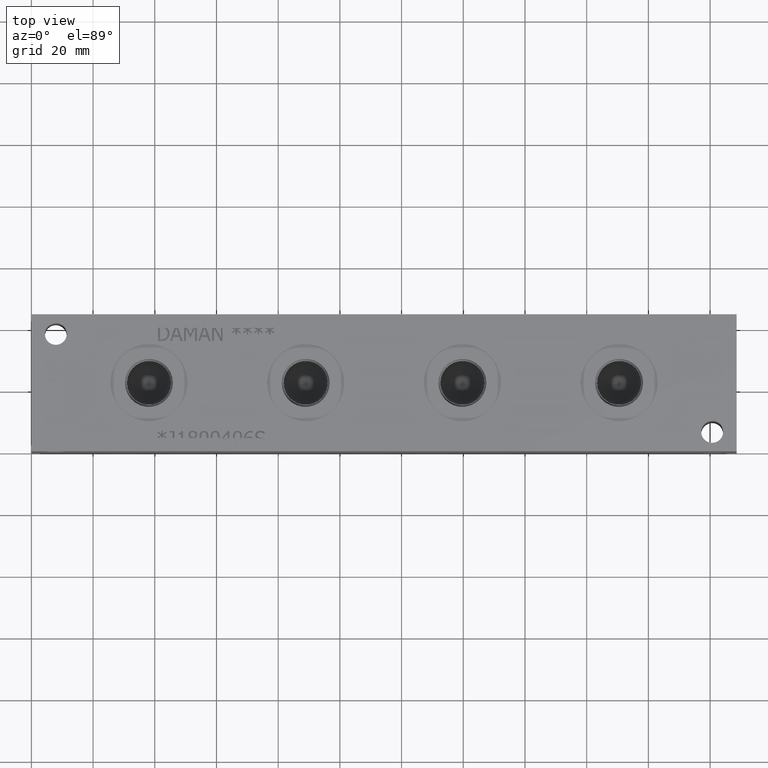
[diagram: clean part render]
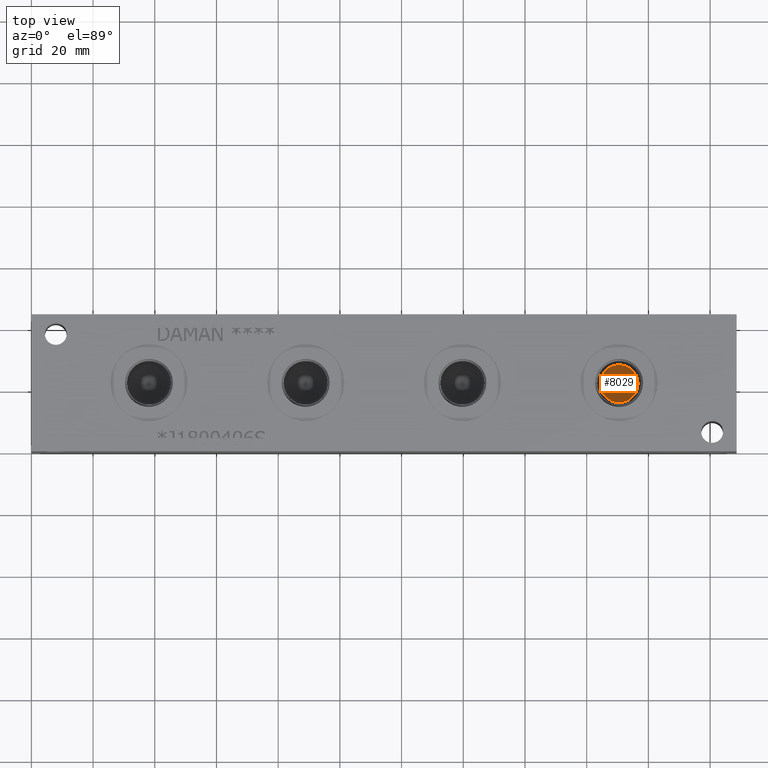
[diagram: same view with one face highlighted and labeled with its STEP entity id]
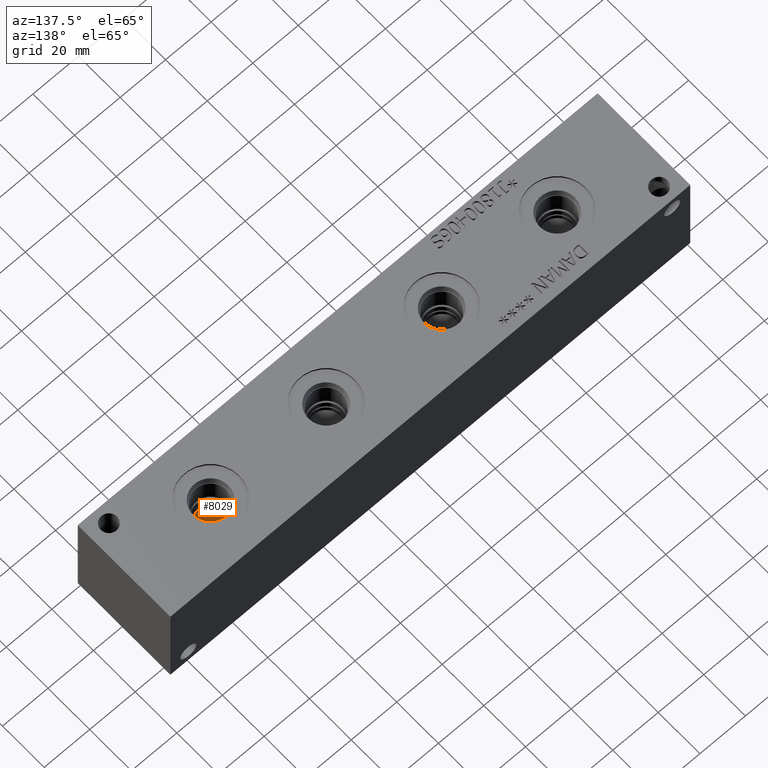
[diagram: same view with one face highlighted and labeled with its STEP entity id]
A machine part, top view. The second image highlights one B-rep face of the part: STEP entity #8029.
A second angle (auxiliary view) of the same face is appended — the face is thin or edge-on in the first view.
In plain terms, the highlighted conical surface has half-angle 60 deg.
Its self-contained STEP definition (entity closure, byte-faithful):
#47=CONICAL_SURFACE('',#8503,3.0734,1.0471975511966);
#243=CIRCLE('',#8504,6.1468);
#244=CIRCLE('',#8505,6.1468);
#950=FACE_OUTER_BOUND('',#1414,.T.);
#1414=EDGE_LOOP('',(#7109,#7110,#7111,#7112));
#2162=LINE('',#13794,#2898);
#2898=VECTOR('',#10142,3.0734);
#3850=VERTEX_POINT('',#13790);
#3851=VERTEX_POINT('',#13791);
#3852=VERTEX_POINT('',#13793);
#4951=EDGE_CURVE('',#3850,#3851,#243,.T.);
#4952=EDGE_CURVE('',#3851,#3852,#2162,.T.);
#4953=EDGE_CURVE('',#3851,#3850,#244,.T.);
#7109=ORIENTED_EDGE('',*,*,#4951,.T.);
#7110=ORIENTED_EDGE('',*,*,#4952,.T.);
#7111=ORIENTED_EDGE('',*,*,#4952,.F.);
#7112=ORIENTED_EDGE('',*,*,#4953,.T.);
#8029=ADVANCED_FACE('',(#950),#47,.F.);
#8503=AXIS2_PLACEMENT_3D('',#13789,#10138,#10139);
#8504=AXIS2_PLACEMENT_3D('',#13792,#10140,#10141);
#8505=AXIS2_PLACEMENT_3D('',#13795,#10143,#10144);
#10138=DIRECTION('center_axis',(0.,0.,1.));
#10139=DIRECTION('ref_axis',(1.,0.,0.));
#10140=DIRECTION('center_axis',(0.,0.,1.));
#10141=DIRECTION('ref_axis',(1.,0.,0.));
#10142=DIRECTION('',(0.866025403784438,1.06057523872491E-16,-0.5));
#10143=DIRECTION('center_axis',(0.,0.,1.));
#10144=DIRECTION('ref_axis',(1.,0.,0.));
#13789=CARTESIAN_POINT('Origin',(190.5,22.225,24.2216816826726));
#13790=CARTESIAN_POINT('',(196.6468,22.225,25.99611));
#13791=CARTESIAN_POINT('',(184.3532,22.225,25.99611));
#13792=CARTESIAN_POINT('Origin',(190.5,22.225,25.99611));
#13793=CARTESIAN_POINT('',(190.5,22.225,22.4472533653452));
#13794=CARTESIAN_POINT('',(187.4266,22.225,24.2216816826726));
#13795=CARTESIAN_POINT('Origin',(190.5,22.225,25.99611));